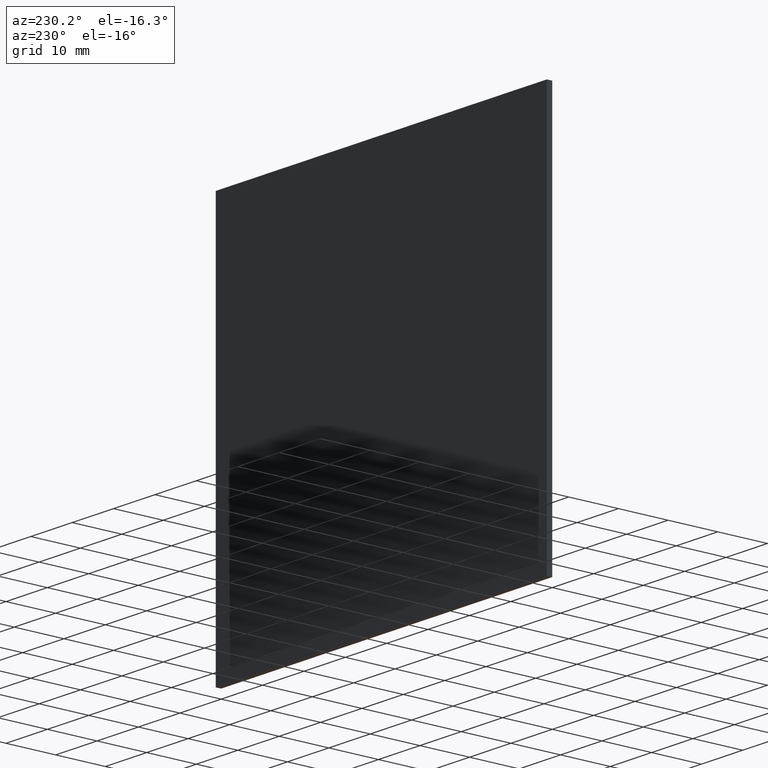
[diagram: clean part render]
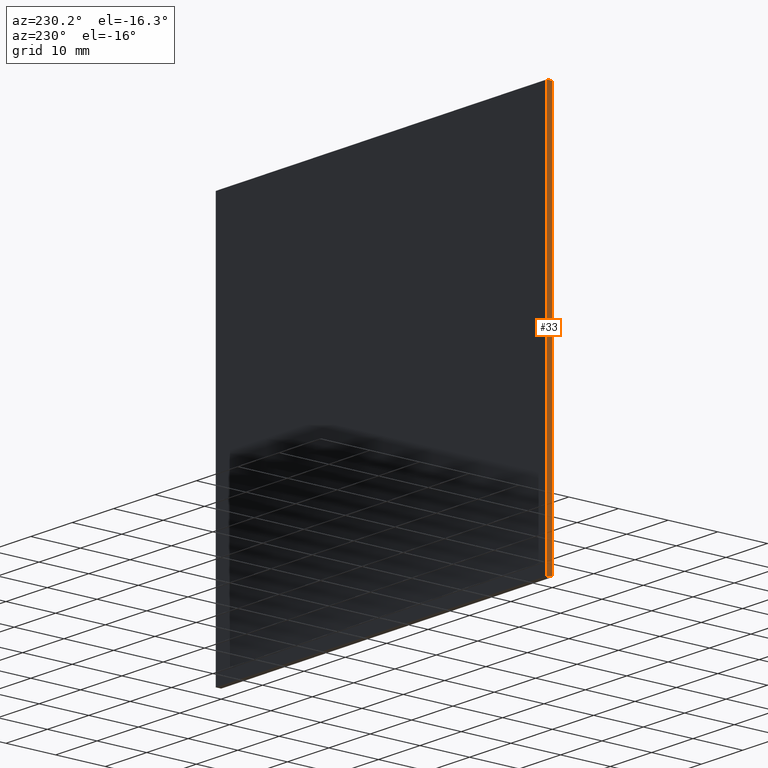
[diagram: same view with one face highlighted and labeled with its STEP entity id]
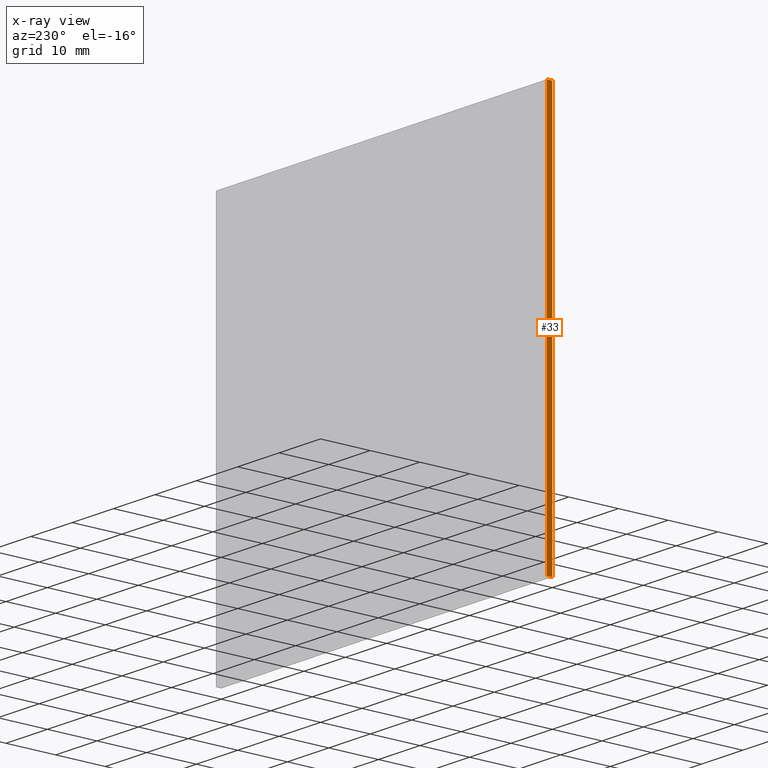
[diagram: x-ray of the same camera — body ghosted, the highlighted face saturated]
A machine part, auxiliary view. The second image highlights one B-rep face of the part: STEP entity #33.
The next image is the same camera in x-ray: the body ghosted, the highlighted face saturated — about 0% of this face is hidden behind the body in this view.
In plain terms, the highlighted planar face has unit normal (1, 0, -0).
Its self-contained STEP definition (entity closure, byte-faithful):
#7 = DIRECTION ( 'NONE',  ( -0.0000000000000000000, -1.000000000000000000, -0.0000000000000000000 ) ) ;
#10 = EDGE_CURVE ( 'NONE', #187, #162, #81, .T. ) ;
#20 = EDGE_LOOP ( 'NONE', ( #54, #171, #94, #38 ) ) ;
#27 = AXIS2_PLACEMENT_3D ( 'NONE', #202, #105, #131 ) ;
#33 = ADVANCED_FACE ( 'NONE', ( #93 ), #44, .F. ) ;
#38 = ORIENTED_EDGE ( 'NONE', *, *, #43, .T. ) ;
#39 = DIRECTION ( 'NONE',  ( -0.0000000000000000000, -1.000000000000000000, -0.0000000000000000000 ) ) ;
#43 = EDGE_CURVE ( 'NONE', #187, #133, #59, .T. ) ;
#44 = PLANE ( 'NONE',  #27 ) ;
#47 = CARTESIAN_POINT ( 'NONE',  ( -40.00000000000000700, 1.100000000000000100, 39.99999999999999300 ) ) ;
#54 = ORIENTED_EDGE ( 'NONE', *, *, #118, .T. ) ;
#58 = CARTESIAN_POINT ( 'NONE',  ( -40.00000000000001400, 0.0000000000000000000, -40.00000000000000700 ) ) ;
#59 = LINE ( 'NONE', #86, #116 ) ;
#77 = VECTOR ( 'NONE', #145, 1000.000000000000000 ) ;
#81 = LINE ( 'NONE', #191, #77 ) ;
#86 = CARTESIAN_POINT ( 'NONE',  ( -40.00000000000001400, 1.100000000000000100, -40.00000000000000700 ) ) ;
#91 = EDGE_CURVE ( 'NONE', #162, #140, #148, .T. ) ;
#93 = FACE_OUTER_BOUND ( 'NONE', #20, .T. ) ;
#94 = ORIENTED_EDGE ( 'NONE', *, *, #10, .F. ) ;
#105 = DIRECTION ( 'NONE',  ( 1.000000000000000000, 0.0000000000000000000, -8.673617379884034200E-017 ) ) ;
#106 = VECTOR ( 'NONE', #196, 1000.000000000000000 ) ;
#116 = VECTOR ( 'NONE', #7, 1000.000000000000000 ) ;
#117 = CARTESIAN_POINT ( 'NONE',  ( -40.00000000000000700, 1.100000000000000100, 39.99999999999999300 ) ) ;
#118 = EDGE_CURVE ( 'NONE', #133, #140, #166, .T. ) ;
#131 = DIRECTION ( 'NONE',  ( -8.673617379884034200E-017, 0.0000000000000000000, -1.000000000000000000 ) ) ;
#133 = VERTEX_POINT ( 'NONE', #135 ) ;
#135 = CARTESIAN_POINT ( 'NONE',  ( -40.00000000000001400, 0.0000000000000000000, -40.00000000000000700 ) ) ;
#139 = CARTESIAN_POINT ( 'NONE',  ( -40.00000000000001400, 1.100000000000000100, -40.00000000000000700 ) ) ;
#140 = VERTEX_POINT ( 'NONE', #152 ) ;
#145 = DIRECTION ( 'NONE',  ( 8.673617379884035500E-017, 0.0000000000000000000, 1.000000000000000000 ) ) ;
#148 = LINE ( 'NONE', #47, #201 ) ;
#152 = CARTESIAN_POINT ( 'NONE',  ( -40.00000000000000700, 0.0000000000000000000, 39.99999999999999300 ) ) ;
#162 = VERTEX_POINT ( 'NONE', #117 ) ;
#166 = LINE ( 'NONE', #58, #106 ) ;
#171 = ORIENTED_EDGE ( 'NONE', *, *, #91, .F. ) ;
#187 = VERTEX_POINT ( 'NONE', #139 ) ;
#191 = CARTESIAN_POINT ( 'NONE',  ( -40.00000000000001400, 1.100000000000000100, -40.00000000000000700 ) ) ;
#196 = DIRECTION ( 'NONE',  ( 8.673617379884035500E-017, 0.0000000000000000000, 1.000000000000000000 ) ) ;
#201 = VECTOR ( 'NONE', #39, 1000.000000000000000 ) ;
#202 = CARTESIAN_POINT ( 'NONE',  ( -40.00000000000001400, 1.100000000000000100, -40.00000000000000700 ) ) ;